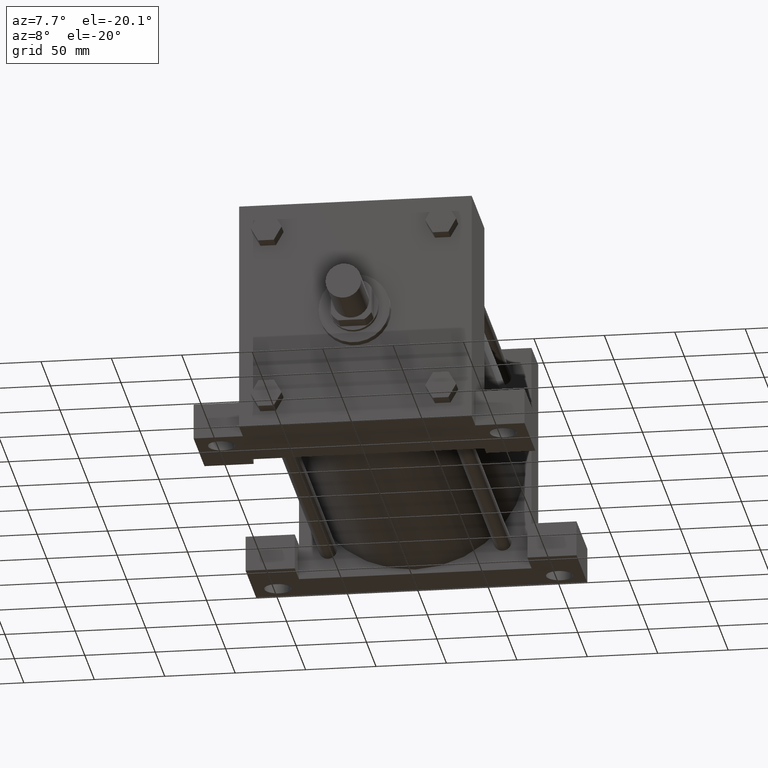
[diagram: clean part render]
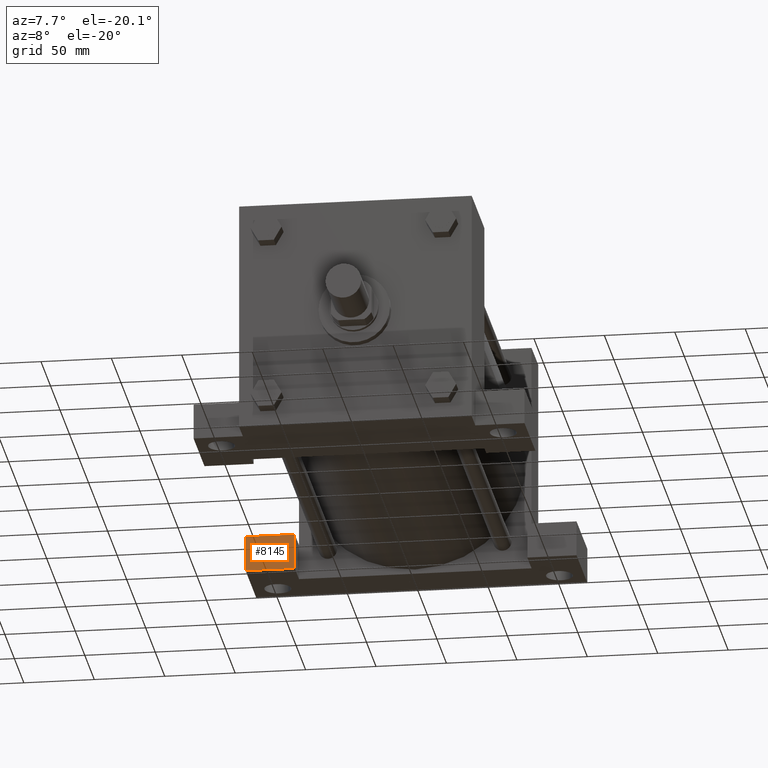
[diagram: same view with one face highlighted and labeled with its STEP entity id]
A machine part, auxiliary view. The second image highlights one B-rep face of the part: STEP entity #8145.
In plain terms, the highlighted planar face has unit normal (0, -1, 0).
Its self-contained STEP definition (entity closure, byte-faithful):
#5310=VERTEX_POINT('',#5312);
#5312=CARTESIAN_POINT('',(-8.255000000E+001,3.143250000E+002,-8.255000000E+001));
#5313=EDGE_CURVE('',#5310,#5318,#5314,.T.);
#5314=LINE('',#5315,#5316);
#5315=CARTESIAN_POINT('',(1.174750000E+002,3.143250000E+002,-8.255000000E+001));
#5316=VECTOR('',#5317,1.0E+000);
#5317=DIRECTION('',(-1.0E+000,0.0E+000,0.0E+000));
#5318=VERTEX_POINT('',#5319);
#5319=CARTESIAN_POINT('',(-1.174750000E+002,3.143250000E+002,-8.255000000E+001));
#5491=VERTEX_POINT('',#5492);
#5492=CARTESIAN_POINT('',(-1.174750000E+002,3.143250000E+002,-5.715000000E+001));
#5493=EDGE_CURVE('',#5498,#5491,#5494,.T.);
#5494=LINE('',#5495,#5496);
#5495=CARTESIAN_POINT('',(-8.255000000E+001,3.143250000E+002,-5.715000000E+001));
#5496=VECTOR('',#5497,1.0E+000);
#5497=DIRECTION('',(-1.0E+000,0.0E+000,0.0E+000));
#5498=VERTEX_POINT('',#5499);
#5499=CARTESIAN_POINT('',(-8.255000000E+001,3.143250000E+002,-5.715000000E+001));
#5512=EDGE_CURVE('',#5491,#5318,#5513,.T.);
#5513=LINE('',#5514,#5515);
#5514=CARTESIAN_POINT('',(-1.174750000E+002,3.143250000E+002,-5.715000000E+001));
#5515=VECTOR('',#5516,1.0E+000);
#5516=DIRECTION('',(0.0E+000,0.0E+000,-1.0E+000));
#5527=FACE_OUTER_BOUND('',#5528,.T.);
#5528=EDGE_LOOP('',(#5529,#5530,#5531,#5532));
#5529=ORIENTED_EDGE('',*,*,#5313,.F.);
#5530=ORIENTED_EDGE('',*,*,#5533,.F.);
#5531=ORIENTED_EDGE('',*,*,#5493,.T.);
#5532=ORIENTED_EDGE('',*,*,#5512,.T.);
#5533=EDGE_CURVE('',#5498,#5310,#5534,.T.);
#5534=LINE('',#5535,#5536);
#5535=CARTESIAN_POINT('',(-8.255000000E+001,3.143250000E+002,-5.715000000E+001));
#5536=VECTOR('',#5537,1.0E+000);
#5537=DIRECTION('',(0.0E+000,0.0E+000,-1.0E+000));
#5538=PLANE('',#5539);
#5539=AXIS2_PLACEMENT_3D('',#5540,#5541,#5542);
#5540=CARTESIAN_POINT('',(-8.255000000E+001,3.143250000E+002,-5.715000000E+001));
#5541=DIRECTION('',(0.0E+000,-1.0E+000,0.0E+000));
#5542=DIRECTION('',(1.0E+000,0.0E+000,0.0E+000));
#8145=ADVANCED_FACE('',(#5527),#5538,.T.);